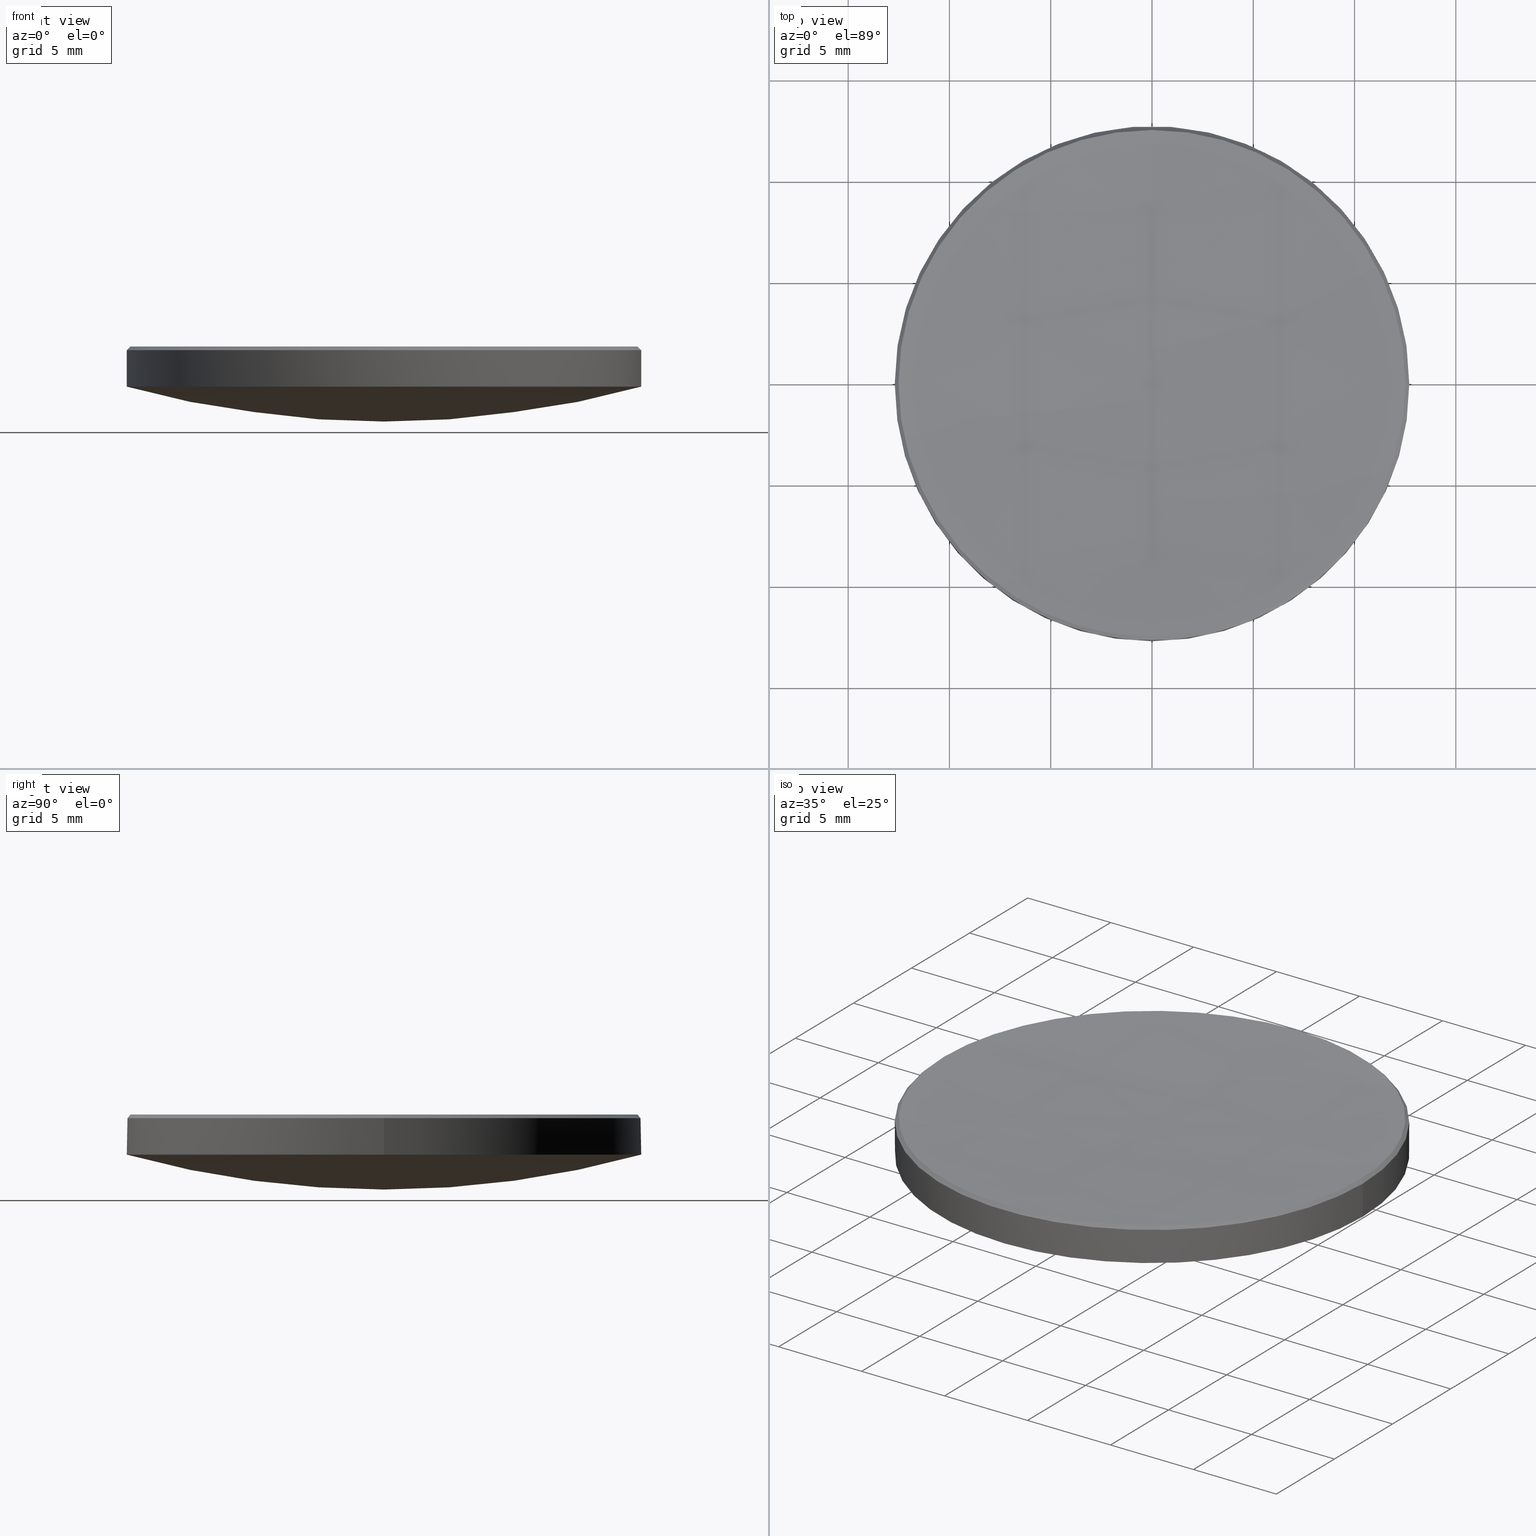
[diagram: canonical four-view strip — front | top / right | iso, engineering-drawing reading convention]
A machine part, canonical four-view strip (front | top / right | iso — engineering-drawing reading convention). The complete STEP part file that produces these views, byte-faithful:
ISO-10303-21;
HEADER;
FILE_DESCRIPTION (( 'STEP AP214' ),
    '1' );
FILE_NAME ('GLM2-025B-150.STEP',
    '2024-08-09T02:43:28',
    ( 'Windows User' ),
    ( 'P R C' ),
    'SwSTEP 2.0',
    'SolidWorks 2022',
    '' );
FILE_SCHEMA (( 'AUTOMOTIVE_DESIGN' ));
ENDSEC;

DATA;
#1 = CARTESIAN_POINT ( 'NONE',  ( 0.000000000000000000, 0.000000000000000000, 155.2205334396041110 ) ) ;
#2 = ORIENTED_EDGE ( 'NONE', *, *, #235, .T. ) ;
#3 =( NAMED_UNIT ( * ) SI_UNIT ( $, .STERADIAN. ) SOLID_ANGLE_UNIT ( ) );
#4 = DIRECTION ( 'NONE',  ( 1.000000000000000000, 0.000000000000000000, 0.000000000000000000 ) ) ;
#5 = DIRECTION ( 'NONE',  ( 0.7071067811865642261, 8.659560562355136236E-17, -0.7071067811865309194 ) ) ;
#6 = EDGE_CURVE ( 'NONE', #274, #229, #54, .T. ) ;
#7 = DIRECTION ( 'NONE',  ( -0.000000000000000000, -0.000000000000000000, -1.000000000000000000 ) ) ;
#8 = EDGE_CURVE ( 'NONE', #170, #14, #28, .T. ) ;
#9 = DIRECTION ( 'NONE',  ( 0.000000000000000000, 1.000000000000000000, 0.000000000000000000 ) ) ;
#10 = AXIS2_PLACEMENT_3D ( 'NONE', #72, #265, #160 ) ;
#11 = CIRCLE ( 'NONE', #57, 12.51558093570960040 ) ;
#12 = ORIENTED_EDGE ( 'NONE', *, *, #225, .F. ) ;
#13 = ORIENTED_EDGE ( 'NONE', *, *, #8, .T. ) ;
#14 = VERTEX_POINT ( 'NONE', #148 ) ;
#15 = ORIENTED_EDGE ( 'NONE', *, *, #275, .T. ) ;
#16 = DIRECTION ( 'NONE',  ( 0.000000000000000000, 1.000000000000000000, 0.000000000000000000 ) ) ;
#17 = VERTEX_POINT ( 'NONE', #37 ) ;
#18 = CARTESIAN_POINT ( 'NONE',  ( 0.000000000000000000, 12.51558093570944230, 5.984419064290369406 ) ) ;
#19 = AXIS2_PLACEMENT_3D ( 'NONE', #46, #133, #111 ) ;
#20 = CARTESIAN_POINT ( 'NONE',  ( 0.000000000000000000, 0.000000000000000000, 49.91600592386058111 ) ) ;
#21 = VERTEX_POINT ( 'NONE', #63 ) ;
#22 = DIRECTION ( 'NONE',  ( -1.000000000000000000, 0.000000000000000000, 0.000000000000000000 ) ) ;
#23 = EDGE_LOOP ( 'NONE', ( #77, #262, #253, #193 ) ) ;
#24 =( NAMED_UNIT ( * ) PLANE_ANGLE_UNIT ( ) SI_UNIT ( $, .RADIAN. ) );
#25 = DIRECTION ( 'NONE',  ( 0.000000000000000000, 0.000000000000000000, -1.000000000000000000 ) ) ;
#26 =( LENGTH_UNIT ( ) NAMED_UNIT ( * ) SI_UNIT ( .MILLI., .METRE. ) );
#27 = SURFACE_STYLE_FILL_AREA ( #158 ) ;
#28 = CIRCLE ( 'NONE', #55, 12.69999999999999929 ) ;
#29 = DIRECTION ( 'NONE',  ( -0.000000000000000000, -0.000000000000000000, 1.000000000000000000 ) ) ;
#30 = SPHERICAL_SURFACE ( 'NONE', #163, 47.64000000000000057 ) ;
#31 = CIRCLE ( 'NONE', #200, 12.51558093570960040 ) ;
#32 = CARTESIAN_POINT ( 'NONE',  ( 0.000000000000000000, 0.000000000000000000, 4.000000000000000000 ) ) ;
#33 = AXIS2_PLACEMENT_3D ( 'NONE', #137, #192, #194 ) ;
#34 = APPLICATION_CONTEXT ( 'automotive_design' ) ;
#35 = EDGE_CURVE ( 'NONE', #17, #204, #232, .T. ) ;
#36 = VERTEX_POINT ( 'NONE', #64 ) ;
#37 = CARTESIAN_POINT ( 'NONE',  ( 0.000000000000000000, 2.917108675568995142E-15, 2.276005923860582758 ) ) ;
#38 = CIRCLE ( 'NONE', #205, 12.69999999999999929 ) ;
#39 = EDGE_LOOP ( 'NONE', ( #41, #76, #128, #261 ) ) ;
#40 = FILL_AREA_STYLE ('',( #231 ) ) ;
#41 = ORIENTED_EDGE ( 'NONE', *, *, #82, .F. ) ;
#42 = EDGE_LOOP ( 'NONE', ( #212, #12, #58, #164, #48 ) ) ;
#43 = UNCERTAINTY_MEASURE_WITH_UNIT (LENGTH_MEASURE( 1.000000000000000082E-05 ), #202, 'distance_accuracy_value', 'NONE');
#44 = DIRECTION ( 'NONE',  ( 1.000000000000000000, 0.000000000000000000, 0.000000000000000000 ) ) ;
#45 = VECTOR ( 'NONE', #5, 1000.000000000000114 ) ;
#46 = CARTESIAN_POINT ( 'NONE',  ( 0.000000000000000000, 0.000000000000000000, 155.2205334396041110 ) ) ;
#47 = CARTESIAN_POINT ( 'NONE',  ( -12.69999999999999929, 0.000000000000000000, 10.00000000000000000 ) ) ;
#48 = ORIENTED_EDGE ( 'NONE', *, *, #6, .F. ) ;
#49 = DIRECTION ( 'NONE',  ( -0.000000000000000000, -0.000000000000000000, 1.000000000000000000 ) ) ;
#50 = DIRECTION ( 'NONE',  ( -0.000000000000000000, -0.000000000000000000, 1.000000000000000000 ) ) ;
#51 = AXIS2_PLACEMENT_3D ( 'NONE', #207, #171, #16 ) ;
#52 = ADVANCED_FACE ( 'NONE', ( #168 ), #151, .T. ) ;
#53 = DIRECTION ( 'NONE',  ( -1.000000000000000000, 0.000000000000000000, 0.000000000000000000 ) ) ;
#54 = CIRCLE ( 'NONE', #73, 12.69999999999999929 ) ;
#55 = AXIS2_PLACEMENT_3D ( 'NONE', #89, #135, #83 ) ;
#56 = EDGE_CURVE ( 'NONE', #229, #274, #38, .T. ) ;
#57 = AXIS2_PLACEMENT_3D ( 'NONE', #239, #49, #258 ) ;
#58 = ORIENTED_EDGE ( 'NONE', *, *, #203, .F. ) ;
#59 = LINE ( 'NONE', #47, #165 ) ;
#60 = DIRECTION ( 'NONE',  ( 0.000000000000000000, 0.000000000000000000, -1.000000000000000000 ) ) ;
#61 = VERTEX_POINT ( 'NONE', #85 ) ;
#62 =( NAMED_UNIT ( * ) PLANE_ANGLE_UNIT ( ) SI_UNIT ( $, .RADIAN. ) );
#63 = CARTESIAN_POINT ( 'NONE',  ( 12.69999999999999929, 1.555301434917138433E-15, 4.000000000000000000 ) ) ;
#64 = CARTESIAN_POINT ( 'NONE',  ( 12.51558093570960040, 1.544009024077889242E-15, 5.984419064290369406 ) ) ;
#65 = CIRCLE ( 'NONE', #96, 12.69999999999999929 ) ;
#66 = ORIENTED_EDGE ( 'NONE', *, *, #104, .F. ) ;
#67 = CARTESIAN_POINT ( 'NONE',  ( -1.555301434917138827E-15, -12.70000000000000284, 4.000000000000001776 ) ) ;
#68 = CIRCLE ( 'NONE', #33, 47.64000000000000057 ) ;
#69 = CARTESIAN_POINT ( 'NONE',  ( 0.000000000000000000, 12.70000000000000284, 4.000000000000001776 ) ) ;
#70 = DIRECTION ( 'NONE',  ( -1.000000000000000000, 0.000000000000000000, 0.000000000000000000 ) ) ;
#71 = PRODUCT_CONTEXT ( 'NONE', #86, 'mechanical' ) ;
#72 = CARTESIAN_POINT ( 'NONE',  ( 0.000000000000000000, 0.000000000000000000, 5.984419064290369406 ) ) ;
#73 = AXIS2_PLACEMENT_3D ( 'NONE', #108, #195, #4 ) ;
#74 = VECTOR ( 'NONE', #218, 1000.000000000000114 ) ;
#75 = PRODUCT_DEFINITION ( 'δ֪', '', #217, #227 ) ;
#76 = ORIENTED_EDGE ( 'NONE', *, *, #234, .T. ) ;
#77 = ORIENTED_EDGE ( 'NONE', *, *, #234, .F. ) ;
#78 = STYLED_ITEM ( 'NONE', ( #81 ), #196 ) ;
#79 = DIRECTION ( 'NONE',  ( 0.000000000000000000, 0.000000000000000000, -1.000000000000000000 ) ) ;
#80 = ORIENTED_EDGE ( 'NONE', *, *, #184, .F. ) ;
#81 = PRESENTATION_STYLE_ASSIGNMENT (( #279 ) ) ;
#82 = EDGE_CURVE ( 'NONE', #214, #228, #249, .T. ) ;
#83 = DIRECTION ( 'NONE',  ( 1.000000000000000000, 0.000000000000000000, 0.000000000000000000 ) ) ;
#84 = FACE_OUTER_BOUND ( 'NONE', #23, .T. ) ;
#85 = CARTESIAN_POINT ( 'NONE',  ( -1.532716613238620527E-15, -12.51558093570944230, 5.984419064290369406 ) ) ;
#86 = APPLICATION_CONTEXT ( 'automotive_design' ) ;
#87 = FACE_OUTER_BOUND ( 'NONE', #42, .T. ) ;
#88 = EDGE_LOOP ( 'NONE', ( #152, #105, #233, #13, #191 ) ) ;
#89 = CARTESIAN_POINT ( 'NONE',  ( 0.000000000000000000, 0.000000000000000000, 4.000000000000000000 ) ) ;
#90 = AXIS2_PLACEMENT_3D ( 'NONE', #206, #282, #237 ) ;
#91 = APPLICATION_PROTOCOL_DEFINITION ( 'draft international standard', 'automotive_design', 1998, #34 ) ;
#92 = LINE ( 'NONE', #97, #45 ) ;
#93 = FACE_OUTER_BOUND ( 'NONE', #189, .T. ) ;
#94 = MECHANICAL_DESIGN_GEOMETRIC_PRESENTATION_REPRESENTATION (  '', ( #122 ), #266 ) ;
#95 = DIRECTION ( 'NONE',  ( 1.000000000000000000, 0.000000000000000000, 0.000000000000000000 ) ) ;
#96 = AXIS2_PLACEMENT_3D ( 'NONE', #32, #29, #140 ) ;
#97 = CARTESIAN_POINT ( 'NONE',  ( 12.51558093570959329, 1.532716613238638868E-15, 5.984419064290396939 ) ) ;
#98 = ADVANCED_FACE ( 'NONE', ( #150 ), #259, .F. ) ;
#99 = AXIS2_PLACEMENT_3D ( 'NONE', #257, #236, #60 ) ;
#100 = ORIENTED_EDGE ( 'NONE', *, *, #35, .F. ) ;
#101 = ORIENTED_EDGE ( 'NONE', *, *, #35, .T. ) ;
#102 = ORIENTED_EDGE ( 'NONE', *, *, #169, .F. ) ;
#103 = AXIS2_PLACEMENT_3D ( 'NONE', #167, #190, #44 ) ;
#104 = EDGE_CURVE ( 'NONE', #228, #113, #31, .T. ) ;
#105 = ORIENTED_EDGE ( 'NONE', *, *, #169, .T. ) ;
#106 = SURFACE_SIDE_STYLE ('',( #129 ) ) ;
#107 = EDGE_CURVE ( 'NONE', #36, #274, #92, .T. ) ;
#108 = CARTESIAN_POINT ( 'NONE',  ( 0.000000000000000000, 0.000000000000000000, 5.799999999999999822 ) ) ;
#109 = AXIS2_PLACEMENT_3D ( 'NONE', #271, #25, #70 ) ;
#110 = DIRECTION ( 'NONE',  ( -1.224646799147353207E-16, -1.000000000000000000, 0.000000000000000000 ) ) ;
#111 = DIRECTION ( 'NONE',  ( 0.000000000000000000, 1.000000000000000000, 0.000000000000000000 ) ) ;
#112 = SPHERICAL_SURFACE ( 'NONE', #51, 149.7600000000000193 ) ;
#113 = VERTEX_POINT ( 'NONE', #197 ) ;
#114 = PRODUCT_DEFINITION_SHAPE ( 'NONE', 'NONE',  #75 ) ;
#115 =( LENGTH_UNIT ( ) NAMED_UNIT ( * ) SI_UNIT ( .MILLI., .METRE. ) );
#116 = ORIENTED_EDGE ( 'NONE', *, *, #147, .T. ) ;
#117 = DIRECTION ( 'NONE',  ( -0.000000000000000000, -0.000000000000000000, -1.000000000000000000 ) ) ;
#118 = DIRECTION ( 'NONE',  ( -0.000000000000000000, -0.000000000000000000, -1.000000000000000000 ) ) ;
#119 =( NAMED_UNIT ( * ) SI_UNIT ( $, .STERADIAN. ) SOLID_ANGLE_UNIT ( ) );
#120 = FILL_AREA_STYLE_COLOUR ( '', #238 ) ;
#121 = CARTESIAN_POINT ( 'NONE',  ( 0.000000000000000000, 0.000000000000000000, 49.91600592386058111 ) ) ;
#122 = STYLED_ITEM ( 'NONE', ( #123 ), #211 ) ;
#123 = PRESENTATION_STYLE_ASSIGNMENT (( #224 ) ) ;
#124 = MECHANICAL_DESIGN_GEOMETRIC_PRESENTATION_REPRESENTATION (  '', ( #78 ), #138 ) ;
#125 = ORIENTED_EDGE ( 'NONE', *, *, #147, .F. ) ;
#126 = DIRECTION ( 'NONE',  ( -1.000000000000000000, 1.224646799147353207E-16, 0.000000000000000000 ) ) ;
#127 = EDGE_CURVE ( 'NONE', #21, #170, #223, .T. ) ;
#128 = ORIENTED_EDGE ( 'NONE', *, *, #225, .T. ) ;
#129 = SURFACE_STYLE_FILL_AREA ( #40 ) ;
#130 = ORIENTED_EDGE ( 'NONE', *, *, #56, .F. ) ;
#131 = AXIS2_PLACEMENT_3D ( 'NONE', #132, #153, #22 ) ;
#132 = CARTESIAN_POINT ( 'NONE',  ( 0.000000000000000000, 0.000000000000000000, 5.984419064290396939 ) ) ;
#133 = DIRECTION ( 'NONE',  ( -1.000000000000000000, 0.000000000000000000, 0.000000000000000000 ) ) ;
#134 = CIRCLE ( 'NONE', #273, 12.69999999999999929 ) ;
#135 = DIRECTION ( 'NONE',  ( -0.000000000000000000, -0.000000000000000000, 1.000000000000000000 ) ) ;
#136 = EDGE_LOOP ( 'NONE', ( #100, #15, #188, #278 ) ) ;
#137 = CARTESIAN_POINT ( 'NONE',  ( 0.000000000000000000, 0.000000000000000000, 49.91600592386058111 ) ) ;
#138 =( GEOMETRIC_REPRESENTATION_CONTEXT ( 3 ) GLOBAL_UNCERTAINTY_ASSIGNED_CONTEXT ( ( #183 ) ) GLOBAL_UNIT_ASSIGNED_CONTEXT ( ( #26, #176, #119 ) ) REPRESENTATION_CONTEXT ( 'NONE', 'WORKASPACE' ) );
#139 = LINE ( 'NONE', #264, #263 ) ;
#140 = DIRECTION ( 'NONE',  ( 1.000000000000000000, 0.000000000000000000, 0.000000000000000000 ) ) ;
#141 = ADVANCED_FACE ( 'NONE', ( #180 ), #268, .T. ) ;
#142 = DIRECTION ( 'NONE',  ( 1.000000000000000000, 0.000000000000000000, 0.000000000000000000 ) ) ;
#143 = CARTESIAN_POINT ( 'NONE',  ( 0.000000000000000000, 0.000000000000000000, 4.000000000000000000 ) ) ;
#144 = UNCERTAINTY_MEASURE_WITH_UNIT (LENGTH_MEASURE( 1.000000000000000082E-05 ), #115, 'distance_accuracy_value', 'NONE');
#145 = AXIS2_PLACEMENT_3D ( 'NONE', #246, #222, #142 ) ;
#146 = CONICAL_SURFACE ( 'NONE', #109, 12.51558093570959329, 0.7853981633974718157 ) ;
#147 = EDGE_CURVE ( 'NONE', #14, #204, #134, .T. ) ;
#148 = CARTESIAN_POINT ( 'NONE',  ( -12.69999999999999929, 0.000000000000000000, 4.000000000000000000 ) ) ;
#149 = ORIENTED_EDGE ( 'NONE', *, *, #8, .F. ) ;
#150 = FACE_OUTER_BOUND ( 'NONE', #39, .T. ) ;
#151 = CYLINDRICAL_SURFACE ( 'NONE', #90, 12.69999999999999929 ) ;
#152 = ORIENTED_EDGE ( 'NONE', *, *, #56, .T. ) ;
#153 = DIRECTION ( 'NONE',  ( 0.000000000000000000, 0.000000000000000000, -1.000000000000000000 ) ) ;
#154 = ORIENTED_EDGE ( 'NONE', *, *, #107, .T. ) ;
#155 =( GEOMETRIC_REPRESENTATION_CONTEXT ( 3 ) GLOBAL_UNCERTAINTY_ASSIGNED_CONTEXT ( ( #144 ) ) GLOBAL_UNIT_ASSIGNED_CONTEXT ( ( #115, #24, #3 ) ) REPRESENTATION_CONTEXT ( 'NONE', 'WORKASPACE' ) );
#156 = CARTESIAN_POINT ( 'NONE',  ( 0.000000000000000000, 0.000000000000000000, 4.000000000000000000 ) ) ;
#157 = ADVANCED_FACE ( 'NONE', ( #174 ), #146, .T. ) ;
#158 = FILL_AREA_STYLE ('',( #120 ) ) ;
#159 = CARTESIAN_POINT ( 'NONE',  ( -12.51558093570959329, 0.000000000000000000, 5.984419064290396939 ) ) ;
#160 = DIRECTION ( 'NONE',  ( 1.000000000000000000, 0.000000000000000000, 0.000000000000000000 ) ) ;
#161 = CLOSED_SHELL ( 'NONE', ( #157, #98, #210, #52, #175, #141, #269, #220 ) ) ;
#162 = CIRCLE ( 'NONE', #103, 12.51558093570960040 ) ;
#163 = AXIS2_PLACEMENT_3D ( 'NONE', #245, #201, #9 ) ;
#164 = ORIENTED_EDGE ( 'NONE', *, *, #184, .T. ) ;
#165 = VECTOR ( 'NONE', #117, 1000.000000000000000 ) ;
#166 = DIRECTION ( 'NONE',  ( 1.000000000000000000, 0.000000000000000000, 0.000000000000000000 ) ) ;
#167 = CARTESIAN_POINT ( 'NONE',  ( 0.000000000000000000, 0.000000000000000000, 5.984419064290369406 ) ) ;
#168 = FACE_OUTER_BOUND ( 'NONE', #88, .T. ) ;
#169 = EDGE_CURVE ( 'NONE', #274, #21, #139, .T. ) ;
#170 = VERTEX_POINT ( 'NONE', #69 ) ;
#171 = DIRECTION ( 'NONE',  ( -1.000000000000000000, 0.000000000000000000, 0.000000000000000000 ) ) ;
#172 = ORIENTED_EDGE ( 'NONE', *, *, #6, .T. ) ;
#173 = CARTESIAN_POINT ( 'NONE',  ( -12.69999999999999929, 0.000000000000000000, 5.799999999999999822 ) ) ;
#174 = FACE_OUTER_BOUND ( 'NONE', #216, .T. ) ;
#175 = ADVANCED_FACE ( 'NONE', ( #221 ), #244, .T. ) ;
#176 =( NAMED_UNIT ( * ) PLANE_ANGLE_UNIT ( ) SI_UNIT ( $, .RADIAN. ) );
#177 = CARTESIAN_POINT ( 'NONE',  ( 0.000000000000000000, 0.000000000000000000, 10.00000000000000000 ) ) ;
#178 = SHAPE_DEFINITION_REPRESENTATION ( #114, #196 ) ;
#179 = PRESENTATION_LAYER_ASSIGNMENT (  '', '', ( #78 ) ) ;
#180 = FACE_OUTER_BOUND ( 'NONE', #136, .T. ) ;
#181 = DIRECTION ( 'NONE',  ( 0.000000000000000000, 1.000000000000000000, 0.000000000000000000 ) ) ;
#182 = DIRECTION ( 'NONE',  ( 1.000000000000000000, 0.000000000000000000, 0.000000000000000000 ) ) ;
#183 = UNCERTAINTY_MEASURE_WITH_UNIT (LENGTH_MEASURE( 1.000000000000000082E-05 ), #26, 'distance_accuracy_value', 'NONE');
#184 = EDGE_CURVE ( 'NONE', #113, #229, #247, .T. ) ;
#185 = EDGE_CURVE ( 'NONE', #204, #21, #65, .T. ) ;
#186 = AXIS2_PLACEMENT_3D ( 'NONE', #143, #272, #198 ) ;
#187 = ORIENTED_EDGE ( 'NONE', *, *, #275, .F. ) ;
#188 = ORIENTED_EDGE ( 'NONE', *, *, #127, .F. ) ;
#189 = EDGE_LOOP ( 'NONE', ( #187, #101, #125, #149 ) ) ;
#190 = DIRECTION ( 'NONE',  ( -0.000000000000000000, -0.000000000000000000, 1.000000000000000000 ) ) ;
#191 = ORIENTED_EDGE ( 'NONE', *, *, #235, .F. ) ;
#192 = DIRECTION ( 'NONE',  ( 1.000000000000000000, -0.000000000000000000, 0.000000000000000000 ) ) ;
#193 = ORIENTED_EDGE ( 'NONE', *, *, #203, .T. ) ;
#194 = DIRECTION ( 'NONE',  ( 0.000000000000000000, 0.000000000000000000, -1.000000000000000000 ) ) ;
#195 = DIRECTION ( 'NONE',  ( 0.000000000000000000, 0.000000000000000000, -1.000000000000000000 ) ) ;
#196 = ADVANCED_BREP_SHAPE_REPRESENTATION ( 'GLM2-025B-150', ( #211, #145 ), #155 ) ;
#197 = CARTESIAN_POINT ( 'NONE',  ( -12.51558093570960040, 0.000000000000000000, 5.984419064290369406 ) ) ;
#198 = DIRECTION ( 'NONE',  ( 1.000000000000000000, 0.000000000000000000, 0.000000000000000000 ) ) ;
#199 = DIRECTION ( 'NONE',  ( -1.000000000000000000, 0.000000000000000000, 0.000000000000000000 ) ) ;
#200 = AXIS2_PLACEMENT_3D ( 'NONE', #280, #50, #95 ) ;
#201 = DIRECTION ( 'NONE',  ( -1.000000000000000000, 0.000000000000000000, 0.000000000000000000 ) ) ;
#202 =( LENGTH_UNIT ( ) NAMED_UNIT ( * ) SI_UNIT ( .MILLI., .METRE. ) );
#203 = EDGE_CURVE ( 'NONE', #113, #61, #252, .T. ) ;
#204 = VERTEX_POINT ( 'NONE', #67 ) ;
#205 = AXIS2_PLACEMENT_3D ( 'NONE', #277, #79, #166 ) ;
#206 = CARTESIAN_POINT ( 'NONE',  ( 0.000000000000000000, 0.000000000000000000, 10.00000000000000000 ) ) ;
#207 = CARTESIAN_POINT ( 'NONE',  ( 0.000000000000000000, 0.000000000000000000, 155.2205334396041110 ) ) ;
#208 = DIRECTION ( 'NONE',  ( -1.224646799147353207E-16, -1.000000000000000000, 0.000000000000000000 ) ) ;
#209 = PRESENTATION_LAYER_ASSIGNMENT (  '', '', ( #122 ) ) ;
#210 = ADVANCED_FACE ( 'NONE', ( #93 ), #30, .T. ) ;
#211 = MANIFOLD_SOLID_BREP ( '����1', #161 ) ;
#212 = ORIENTED_EDGE ( 'NONE', *, *, #107, .F. ) ;
#213 = AXIS2_PLACEMENT_3D ( 'NONE', #177, #7, #53 ) ;
#214 = VERTEX_POINT ( 'NONE', #215 ) ;
#215 = CARTESIAN_POINT ( 'NONE',  ( 0.000000000000000000, 9.170155232015382598E-15, 5.460533439604065009 ) ) ;
#216 = EDGE_LOOP ( 'NONE', ( #240, #154, #130, #80, #66 ) ) ;
#217 = PRODUCT_DEFINITION_FORMATION_WITH_SPECIFIED_SOURCE ( '�κ�', '', #241, .NOT_KNOWN. ) ;
#218 = DIRECTION ( 'NONE',  ( -0.7071067811865642261, 0.000000000000000000, -0.7071067811865309194 ) ) ;
#219 = AXIS2_PLACEMENT_3D ( 'NONE', #20, #126, #208 ) ;
#220 = ADVANCED_FACE ( 'NONE', ( #87 ), #250, .T. ) ;
#221 = FACE_OUTER_BOUND ( 'NONE', #230, .T. ) ;
#222 = DIRECTION ( 'NONE',  ( 0.000000000000000000, 0.000000000000000000, 1.000000000000000000 ) ) ;
#223 = CIRCLE ( 'NONE', #186, 12.69999999999999929 ) ;
#224 = SURFACE_STYLE_USAGE ( .BOTH. , #243 ) ;
#225 = EDGE_CURVE ( 'NONE', #61, #36, #11, .T. ) ;
#226 = CIRCLE ( 'NONE', #276, 149.7600000000000193 ) ;
#227 = PRODUCT_DEFINITION_CONTEXT ( 'detailed design', #34, 'design' ) ;
#228 = VERTEX_POINT ( 'NONE', #18 ) ;
#229 = VERTEX_POINT ( 'NONE', #173 ) ;
#230 = EDGE_LOOP ( 'NONE', ( #102, #172, #2, #116, #254 ) ) ;
#231 = FILL_AREA_STYLE_COLOUR ( '', #267 ) ;
#232 = CIRCLE ( 'NONE', #219, 47.64000000000000057 ) ;
#233 = ORIENTED_EDGE ( 'NONE', *, *, #127, .T. ) ;
#234 = EDGE_CURVE ( 'NONE', #214, #61, #226, .T. ) ;
#235 = EDGE_CURVE ( 'NONE', #229, #14, #59, .T. ) ;
#236 = DIRECTION ( 'NONE',  ( 1.000000000000000000, 0.000000000000000000, 0.000000000000000000 ) ) ;
#237 = DIRECTION ( 'NONE',  ( -1.000000000000000000, 0.000000000000000000, 0.000000000000000000 ) ) ;
#238 = COLOUR_RGB ( '',1.000000000000000000, 1.000000000000000000, 1.000000000000000000 ) ;
#239 = CARTESIAN_POINT ( 'NONE',  ( 0.000000000000000000, 0.000000000000000000, 5.984419064290369406 ) ) ;
#240 = ORIENTED_EDGE ( 'NONE', *, *, #256, .F. ) ;
#241 = PRODUCT ( 'GLM2-025B-150', 'GLM2-025B-150', '', ( #71 ) ) ;
#242 =( NAMED_UNIT ( * ) SI_UNIT ( $, .STERADIAN. ) SOLID_ANGLE_UNIT ( ) );
#243 = SURFACE_SIDE_STYLE ('',( #27 ) ) ;
#244 = CYLINDRICAL_SURFACE ( 'NONE', #213, 12.69999999999999929 ) ;
#245 = CARTESIAN_POINT ( 'NONE',  ( 0.000000000000000000, 0.000000000000000000, 49.91600592386058111 ) ) ;
#246 = CARTESIAN_POINT ( 'NONE',  ( 0.000000000000000000, 0.000000000000000000, 0.000000000000000000 ) ) ;
#247 = LINE ( 'NONE', #159, #74 ) ;
#248 = DIRECTION ( 'NONE',  ( -0.000000000000000000, -0.000000000000000000, 1.000000000000000000 ) ) ;
#249 = CIRCLE ( 'NONE', #99, 149.7600000000000193 ) ;
#250 = CONICAL_SURFACE ( 'NONE', #131, 12.51558093570959329, 0.7853981633974718157 ) ;
#251 = PRODUCT_RELATED_PRODUCT_CATEGORY ( 'part', '', ( #241 ) ) ;
#252 = CIRCLE ( 'NONE', #10, 12.51558093570960040 ) ;
#253 = ORIENTED_EDGE ( 'NONE', *, *, #104, .T. ) ;
#254 = ORIENTED_EDGE ( 'NONE', *, *, #185, .T. ) ;
#255 = APPLICATION_PROTOCOL_DEFINITION ( 'draft international standard', 'automotive_design', 1998, #86 ) ;
#256 = EDGE_CURVE ( 'NONE', #36, #228, #162, .T. ) ;
#257 = CARTESIAN_POINT ( 'NONE',  ( 0.000000000000000000, 0.000000000000000000, 155.2205334396041110 ) ) ;
#258 = DIRECTION ( 'NONE',  ( 1.000000000000000000, 0.000000000000000000, 0.000000000000000000 ) ) ;
#259 = SPHERICAL_SURFACE ( 'NONE', #19, 149.7600000000000193 ) ;
#260 = CARTESIAN_POINT ( 'NONE',  ( 12.69999999999999929, 1.555301434917138433E-15, 5.799999999999999822 ) ) ;
#261 = ORIENTED_EDGE ( 'NONE', *, *, #256, .T. ) ;
#262 = ORIENTED_EDGE ( 'NONE', *, *, #82, .T. ) ;
#263 = VECTOR ( 'NONE', #118, 1000.000000000000000 ) ;
#264 = CARTESIAN_POINT ( 'NONE',  ( 12.69999999999999929, 1.555301434917138433E-15, 10.00000000000000000 ) ) ;
#265 = DIRECTION ( 'NONE',  ( -0.000000000000000000, -0.000000000000000000, 1.000000000000000000 ) ) ;
#266 =( GEOMETRIC_REPRESENTATION_CONTEXT ( 3 ) GLOBAL_UNCERTAINTY_ASSIGNED_CONTEXT ( ( #43 ) ) GLOBAL_UNIT_ASSIGNED_CONTEXT ( ( #202, #62, #242 ) ) REPRESENTATION_CONTEXT ( 'NONE', 'WORKASPACE' ) );
#267 = COLOUR_RGB ( '',1.000000000000000000, 1.000000000000000000, 1.000000000000000000 ) ;
#268 = SPHERICAL_SURFACE ( 'NONE', #270, 47.64000000000000057 ) ;
#269 = ADVANCED_FACE ( 'NONE', ( #84 ), #112, .F. ) ;
#270 = AXIS2_PLACEMENT_3D ( 'NONE', #121, #199, #181 ) ;
#271 = CARTESIAN_POINT ( 'NONE',  ( 0.000000000000000000, 0.000000000000000000, 5.984419064290396939 ) ) ;
#272 = DIRECTION ( 'NONE',  ( -0.000000000000000000, -0.000000000000000000, 1.000000000000000000 ) ) ;
#273 = AXIS2_PLACEMENT_3D ( 'NONE', #156, #248, #182 ) ;
#274 = VERTEX_POINT ( 'NONE', #260 ) ;
#275 = EDGE_CURVE ( 'NONE', #17, #170, #68, .T. ) ;
#276 = AXIS2_PLACEMENT_3D ( 'NONE', #1, #281, #110 ) ;
#277 = CARTESIAN_POINT ( 'NONE',  ( 0.000000000000000000, 0.000000000000000000, 5.799999999999999822 ) ) ;
#278 = ORIENTED_EDGE ( 'NONE', *, *, #185, .F. ) ;
#279 = SURFACE_STYLE_USAGE ( .BOTH. , #106 ) ;
#280 = CARTESIAN_POINT ( 'NONE',  ( 0.000000000000000000, 0.000000000000000000, 5.984419064290369406 ) ) ;
#281 = DIRECTION ( 'NONE',  ( -1.000000000000000000, 1.224646799147353207E-16, 0.000000000000000000 ) ) ;
#282 = DIRECTION ( 'NONE',  ( -0.000000000000000000, -0.000000000000000000, -1.000000000000000000 ) ) ;
ENDSEC;
END-ISO-10303-21;
